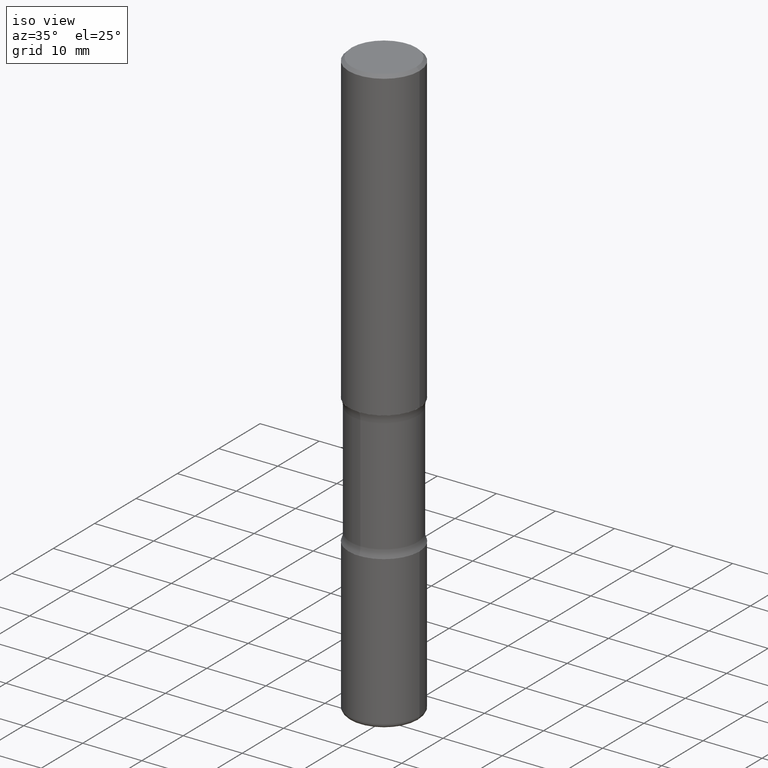
[diagram: clean part render]
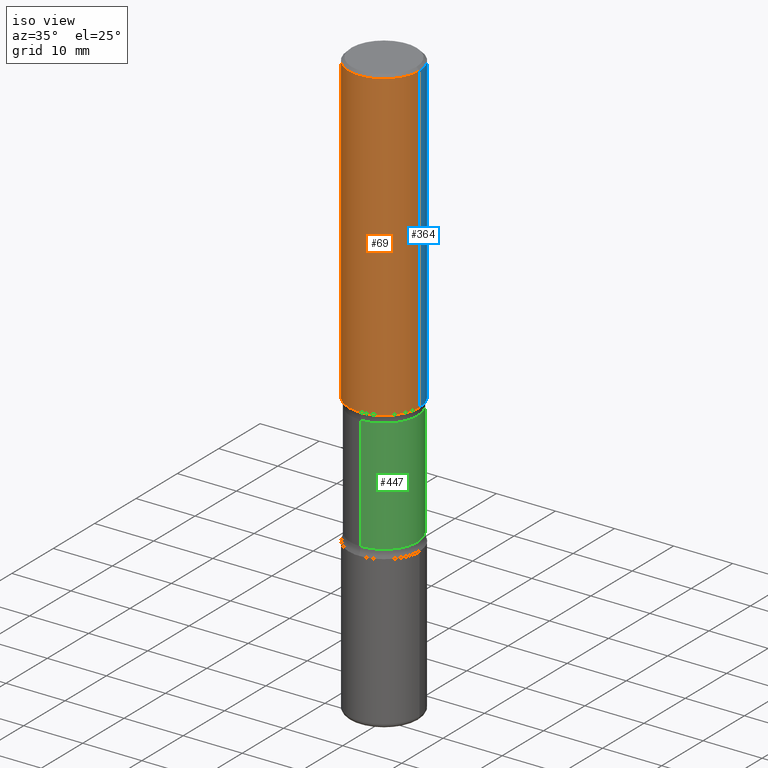
[diagram: same view with three faces highlighted in distinct colors, each labeled with its STEP entity id]
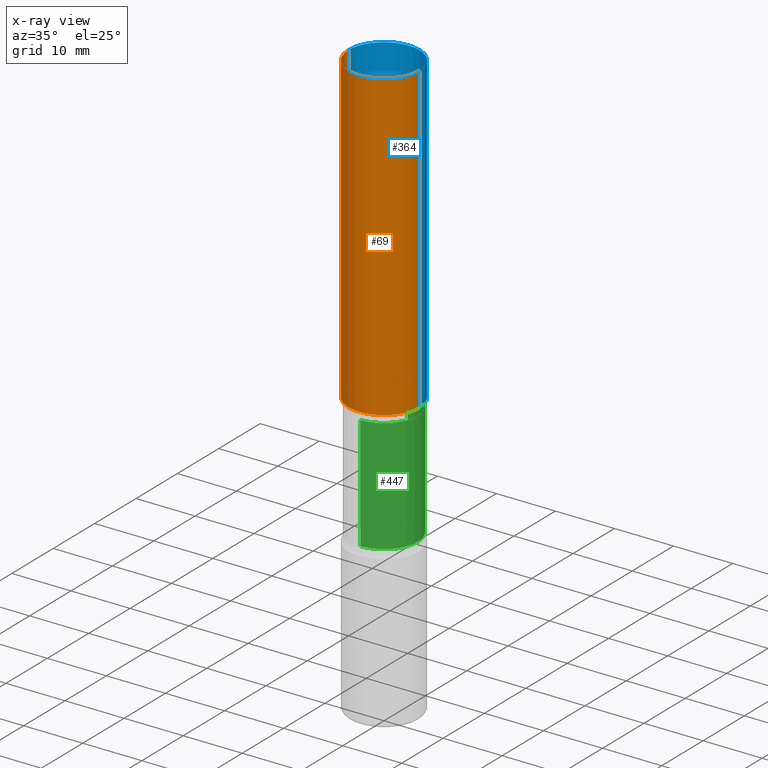
[diagram: x-ray of the same camera — body ghosted, the three highlighted faces saturated]
A machine part, iso view with three faces highlighted in distinct colors.
The next image is the same camera in x-ray (body ghosted, the three faces saturated) — at least one of them is partly hidden behind the body in this view.
Their STEP definitions:

[orange] entity #69 — the highlighted cylindrical surface (partial cylindrical patch) has radius 5.9995 mm, axis along (-0, 0, 1).
#1 = DIRECTION ( 'NONE',  ( -2.445468806185136597E-29, 3.491481338843145583E-15, 1.000000000000000000 ) ) ;
#16 = DIRECTION ( 'NONE',  ( -2.445468806185136877E-29, 3.491481338843145188E-15, 1.000000000000000000 ) ) ;
#40 = CARTESIAN_POINT ( 'NONE',  ( 0.000000000000000000, 0.000000000000000000, 0.000000000000000000 ) ) ;
#53 = ORIENTED_EDGE ( 'NONE', *, *, #457, .T. ) ;
#61 = CARTESIAN_POINT ( 'NONE',  ( 0.2361999999999998823, -1.690279253850498179E-15, -0.02000000000000006981 ) ) ;
#69 = ADVANCED_FACE ( 'NONE', ( #513 ), #436, .T. ) ;
#77 = CARTESIAN_POINT ( 'NONE',  ( 5.006363740022212241E-29, -7.147760596879688202E-15, -2.047200000000000131 ) ) ;
#93 = CARTESIAN_POINT ( 'NONE',  ( 0.2361999999999999933, -1.649375784469496131E-15, 1.151752954443000088E-29 ) ) ;
#99 = CARTESIAN_POINT ( 'NONE',  ( -0.2361999999999998823, 1.579546157692632438E-15, -0.02000000000000006981 ) ) ;
#100 = ORIENTED_EDGE ( 'NONE', *, *, #285, .T. ) ;
#104 = LINE ( 'NONE', #93, #256 ) ;
#119 = CIRCLE ( 'NONE', #488, 0.2361999999999998823 ) ;
#126 = EDGE_CURVE ( 'NONE', #189, #397, #119, .T. ) ;
#139 = DIRECTION ( 'NONE',  ( 1.000000000000000000, -6.982962677686266711E-15, 4.876176775795936353E-29 ) ) ;
#189 = VERTEX_POINT ( 'NONE', #99 ) ;
#201 = CARTESIAN_POINT ( 'NONE',  ( -0.2361999999999999933, 1.678301941865356591E-15, -1.161852468318208757E-29 ) ) ;
#207 = EDGE_CURVE ( 'NONE', #253, #189, #498, .T. ) ;
#208 = ORIENTED_EDGE ( 'NONE', *, *, #207, .F. ) ;
#248 = VECTOR ( 'NONE', #369, 39.37007874015748143 ) ;
#253 = VERTEX_POINT ( 'NONE', #288 ) ;
#256 = VECTOR ( 'NONE', #16, 39.37007874015748143 ) ;
#268 = CIRCLE ( 'NONE', #529, 0.2362000000000001321 ) ;
#285 = EDGE_CURVE ( 'NONE', #253, #554, #268, .T. ) ;
#288 = CARTESIAN_POINT ( 'NONE',  ( -0.2362000000000001598, -1.930493169962915017E-15, -2.047200000000000131 ) ) ;
#301 = EDGE_LOOP ( 'NONE', ( #208, #100, #53, #474 ) ) ;
#334 = DIRECTION ( 'NONE',  ( -2.445468806185136597E-29, 3.491481338843145583E-15, 1.000000000000000000 ) ) ;
#362 = DIRECTION ( 'NONE',  ( -2.445468806185136597E-29, 3.491481338843145583E-15, 1.000000000000000000 ) ) ;
#369 = DIRECTION ( 'NONE',  ( -2.445468806185136877E-29, 3.491481338843145188E-15, 1.000000000000000000 ) ) ;
#397 = VERTEX_POINT ( 'NONE', #61 ) ;
#436 = CYLINDRICAL_SURFACE ( 'NONE', #486, 0.2361999999999999933 ) ;
#445 = DIRECTION ( 'NONE',  ( 1.000000000000000000, -6.982962677686267499E-15, 0.000000000000000000 ) ) ;
#457 = EDGE_CURVE ( 'NONE', #554, #397, #104, .T. ) ;
#459 = CARTESIAN_POINT ( 'NONE',  ( 4.890937612370289799E-31, -6.982962677686315028E-17, -0.02000000000000006981 ) ) ;
#474 = ORIENTED_EDGE ( 'NONE', *, *, #126, .F. ) ;
#486 = AXIS2_PLACEMENT_3D ( 'NONE', #40, #1, #139 ) ;
#488 = AXIS2_PLACEMENT_3D ( 'NONE', #459, #362, #445 ) ;
#498 = LINE ( 'NONE', #201, #248 ) ;
#507 = DIRECTION ( 'NONE',  ( 1.000000000000000000, -6.982962677686269077E-15, 0.000000000000000000 ) ) ;
#513 = FACE_OUTER_BOUND ( 'NONE', #301, .T. ) ;
#529 = AXIS2_PLACEMENT_3D ( 'NONE', #77, #334, #507 ) ;
#546 = CARTESIAN_POINT ( 'NONE',  ( 0.2362000000000001321, -8.797136381349186305E-15, -2.047200000000000131 ) ) ;
#554 = VERTEX_POINT ( 'NONE', #546 ) ;

[blue] entity #364 — the highlighted cylindrical surface (partial cylindrical patch) has radius 5.9995 mm, axis along (-0, 0, 1).
#11 = DIRECTION ( 'NONE',  ( -2.445468806185136597E-29, 3.491481338843145583E-15, 1.000000000000000000 ) ) ;
#14 = EDGE_LOOP ( 'NONE', ( #294, #128, #289, #465 ) ) ;
#16 = DIRECTION ( 'NONE',  ( -2.445468806185136877E-29, 3.491481338843145188E-15, 1.000000000000000000 ) ) ;
#30 = AXIS2_PLACEMENT_3D ( 'NONE', #187, #11, #320 ) ;
#56 = DIRECTION ( 'NONE',  ( 1.000000000000000000, -6.982962677686267499E-15, 0.000000000000000000 ) ) ;
#61 = CARTESIAN_POINT ( 'NONE',  ( 0.2361999999999998823, -1.690279253850498179E-15, -0.02000000000000006981 ) ) ;
#72 = AXIS2_PLACEMENT_3D ( 'NONE', #448, #203, #56 ) ;
#80 = CYLINDRICAL_SURFACE ( 'NONE', #30, 0.2361999999999999933 ) ;
#93 = CARTESIAN_POINT ( 'NONE',  ( 0.2361999999999999933, -1.649375784469496131E-15, 1.151752954443000088E-29 ) ) ;
#99 = CARTESIAN_POINT ( 'NONE',  ( -0.2361999999999998823, 1.579546157692632438E-15, -0.02000000000000006981 ) ) ;
#104 = LINE ( 'NONE', #93, #256 ) ;
#128 = ORIENTED_EDGE ( 'NONE', *, *, #207, .T. ) ;
#167 = DIRECTION ( 'NONE',  ( 1.000000000000000000, -6.982962677686269077E-15, 0.000000000000000000 ) ) ;
#187 = CARTESIAN_POINT ( 'NONE',  ( 0.000000000000000000, 0.000000000000000000, 0.000000000000000000 ) ) ;
#189 = VERTEX_POINT ( 'NONE', #99 ) ;
#201 = CARTESIAN_POINT ( 'NONE',  ( -0.2361999999999999933, 1.678301941865356591E-15, -1.161852468318208757E-29 ) ) ;
#203 = DIRECTION ( 'NONE',  ( -2.445468806185136597E-29, 3.491481338843145583E-15, 1.000000000000000000 ) ) ;
#207 = EDGE_CURVE ( 'NONE', #253, #189, #498, .T. ) ;
#238 = EDGE_CURVE ( 'NONE', #554, #253, #346, .T. ) ;
#248 = VECTOR ( 'NONE', #369, 39.37007874015748143 ) ;
#253 = VERTEX_POINT ( 'NONE', #288 ) ;
#256 = VECTOR ( 'NONE', #16, 39.37007874015748143 ) ;
#288 = CARTESIAN_POINT ( 'NONE',  ( -0.2362000000000001598, -1.930493169962915017E-15, -2.047200000000000131 ) ) ;
#289 = ORIENTED_EDGE ( 'NONE', *, *, #525, .F. ) ;
#294 = ORIENTED_EDGE ( 'NONE', *, *, #238, .T. ) ;
#320 = DIRECTION ( 'NONE',  ( 1.000000000000000000, -6.982962677686266711E-15, 4.876176775795936353E-29 ) ) ;
#336 = DIRECTION ( 'NONE',  ( -2.445468806185136597E-29, 3.491481338843145583E-15, 1.000000000000000000 ) ) ;
#346 = CIRCLE ( 'NONE', #430, 0.2362000000000001321 ) ;
#364 = ADVANCED_FACE ( 'NONE', ( #426 ), #80, .T. ) ;
#369 = DIRECTION ( 'NONE',  ( -2.445468806185136877E-29, 3.491481338843145188E-15, 1.000000000000000000 ) ) ;
#397 = VERTEX_POINT ( 'NONE', #61 ) ;
#426 = FACE_OUTER_BOUND ( 'NONE', #14, .T. ) ;
#430 = AXIS2_PLACEMENT_3D ( 'NONE', #506, #336, #167 ) ;
#448 = CARTESIAN_POINT ( 'NONE',  ( 4.890937612370289799E-31, -6.982962677686315028E-17, -0.02000000000000006981 ) ) ;
#457 = EDGE_CURVE ( 'NONE', #554, #397, #104, .T. ) ;
#464 = CIRCLE ( 'NONE', #72, 0.2361999999999998823 ) ;
#465 = ORIENTED_EDGE ( 'NONE', *, *, #457, .F. ) ;
#498 = LINE ( 'NONE', #201, #248 ) ;
#506 = CARTESIAN_POINT ( 'NONE',  ( 5.006363740022212241E-29, -7.147760596879688202E-15, -2.047200000000000131 ) ) ;
#525 = EDGE_CURVE ( 'NONE', #397, #189, #464, .T. ) ;
#546 = CARTESIAN_POINT ( 'NONE',  ( 0.2362000000000001321, -8.797136381349186305E-15, -2.047200000000000131 ) ) ;
#554 = VERTEX_POINT ( 'NONE', #546 ) ;

[green] entity #447 — the highlighted cylindrical surface (partial cylindrical patch) has radius 5.6998 mm, axis along (0, -0, -1).
#23 = CARTESIAN_POINT ( 'NONE',  ( 6.990709676060807691E-29, -9.993088279580958225E-15, -2.860383398826405354 ) ) ;
#25 = CARTESIAN_POINT ( 'NONE',  ( 5.070539682259229331E-29, -7.426630284172150130E-15, -2.100216601173595432 ) ) ;
#31 = CIRCLE ( 'NONE', #560, 0.2243999999999999606 ) ;
#37 = EDGE_CURVE ( 'NONE', #227, #372, #523, .T. ) ;
#57 = CARTESIAN_POINT ( 'NONE',  ( 1.566976824872894642E-15, 0.2243999999999863049, -3.937000000000000721 ) ) ;
#75 = CARTESIAN_POINT ( 'NONE',  ( 1.566976824872867821E-15, 0.2243999999999899686, -2.860383398826405799 ) ) ;
#78 = VERTEX_POINT ( 'NONE', #217 ) ;
#129 = EDGE_CURVE ( 'NONE', #273, #372, #221, .T. ) ;
#147 = CYLINDRICAL_SURFACE ( 'NONE', #158, 0.2243999999999999329 ) ;
#148 = EDGE_CURVE ( 'NONE', #78, #273, #197, .T. ) ;
#158 = AXIS2_PLACEMENT_3D ( 'NONE', #504, #159, #490 ) ;
#159 = DIRECTION ( 'NONE',  ( 2.525985086076564115E-29, -3.376177443336566513E-15, -1.000000000000000000 ) ) ;
#181 = ORIENTED_EDGE ( 'NONE', *, *, #37, .T. ) ;
#197 = LINE ( 'NONE', #57, #331 ) ;
#217 = CARTESIAN_POINT ( 'NONE',  ( 1.566976824872848494E-15, 0.2243999999999925499, -2.100216601173596320 ) ) ;
#221 = CIRCLE ( 'NONE', #517, 0.2243999999999999606 ) ;
#227 = VERTEX_POINT ( 'NONE', #242 ) ;
#229 = DIRECTION ( 'NONE',  ( 2.525985086076564115E-29, -3.376177443336566513E-15, -1.000000000000000000 ) ) ;
#232 = CARTESIAN_POINT ( 'NONE',  ( -1.579972688886713168E-15, -0.2244000000000099804, -2.860383398826404466 ) ) ;
#234 = ORIENTED_EDGE ( 'NONE', *, *, #129, .F. ) ;
#242 = CARTESIAN_POINT ( 'NONE',  ( -1.579972688886734072E-15, -0.2244000000000073713, -2.100216601173594544 ) ) ;
#259 = CARTESIAN_POINT ( 'NONE',  ( -1.539495750699834052E-15, -0.2244000000000135608, -3.936999999999999389 ) ) ;
#273 = VERTEX_POINT ( 'NONE', #75 ) ;
#280 = DIRECTION ( 'NONE',  ( 2.525985086076564115E-29, -3.376177443336566513E-15, -1.000000000000000000 ) ) ;
#326 = DIRECTION ( 'NONE',  ( 2.525985086076564115E-29, -3.376177443336566513E-15, -1.000000000000000000 ) ) ;
#331 = VECTOR ( 'NONE', #326, 39.37007874015748143 ) ;
#372 = VERTEX_POINT ( 'NONE', #232 ) ;
#386 = ORIENTED_EDGE ( 'NONE', *, *, #450, .T. ) ;
#395 = ORIENTED_EDGE ( 'NONE', *, *, #148, .F. ) ;
#405 = DIRECTION ( 'NONE',  ( 6.982962677686265922E-15, 1.000000000000000000, -3.652203200085913934E-15 ) ) ;
#432 = DIRECTION ( 'NONE',  ( 2.525985086076564115E-29, -3.376177443336566513E-15, -1.000000000000000000 ) ) ;
#447 = ADVANCED_FACE ( 'NONE', ( #531 ), #147, .T. ) ;
#450 = EDGE_CURVE ( 'NONE', #78, #227, #31, .T. ) ;
#490 = DIRECTION ( 'NONE',  ( 6.982962677686265922E-15, 1.000000000000000000, -2.434802133390609815E-15 ) ) ;
#494 = DIRECTION ( 'NONE',  ( 6.982962677686265922E-15, 1.000000000000000000, -2.434802133390609421E-15 ) ) ;
#504 = CARTESIAN_POINT ( 'NONE',  ( 9.710227154047748282E-29, -1.362793696358492956E-14, -3.937000000000000277 ) ) ;
#517 = AXIS2_PLACEMENT_3D ( 'NONE', #23, #280, #494 ) ;
#523 = LINE ( 'NONE', #259, #558 ) ;
#531 = FACE_OUTER_BOUND ( 'NONE', #557, .T. ) ;
#557 = EDGE_LOOP ( 'NONE', ( #386, #181, #234, #395 ) ) ;
#558 = VECTOR ( 'NONE', #432, 39.37007874015748143 ) ;
#560 = AXIS2_PLACEMENT_3D ( 'NONE', #25, #229, #405 ) ;